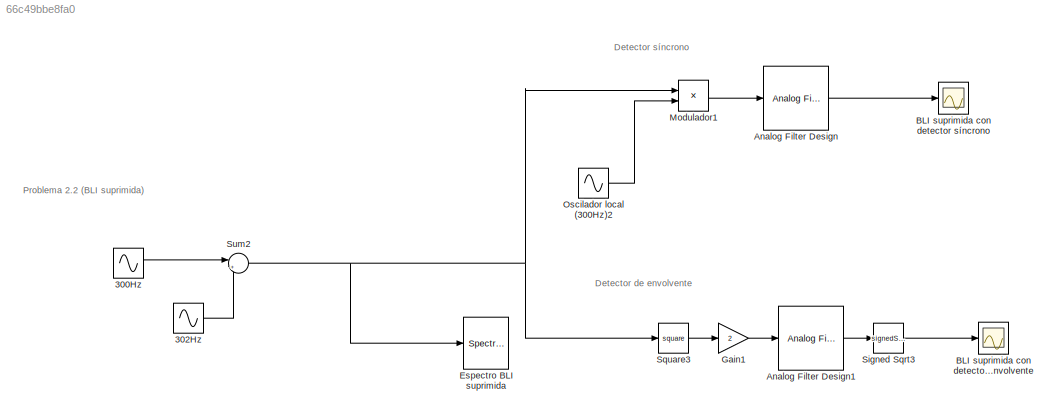
MODEL slx_66c49bbe8fa0
KIND model
CONFIG AbsTol = auto
CONFIG EnableMultiTasking = off
CONFIG FixedStep = auto
CONFIG MaxStep = auto
CONFIG MinStep = auto
CONFIG RelTol = 1e-3
CONFIG SampleTimeConstraint = Unconstrained
CONFIG SolverName = VariableStepAuto
CONFIG StartTime = 0.0
CONFIG StopTime = 10.0
BLOCK [Sin] 300Hz
  Frequency = 2*pi*300
  Ports = [0, 1]
  SampleTime = 1/5000
BLOCK [Sin] 302Hz
  Amplitude = 0.8
  Frequency = 2*pi*302
  Ports = [0, 1]
  SampleTime = 1/5000
BLOCK [Reference] Analog Filter Design  REF=dsparch4/Analog
Filter Design
  Ports = [1, 1]
  SourceBlock = dsparch4/Analog\nFilter Design
  SourceProductBaseCode = DS
  SourceType = Analog Filter Design
BLOCK [Reference] Analog Filter Design1  REF=dsparch4/Analog
Filter Design
  Ports = [1, 1]
  SourceBlock = dsparch4/Analog\nFilter Design
  SourceProductBaseCode = DS
  SourceType = Analog Filter Design
BLOCK [Scope] BLI suprimida con detector de envolvente
  Floating = off
  NumInputPorts = 1
  Ports = [1]
  ScopeSpecificationString = Simulink.scopes.TimeScopeBlockCfg('CurrentConfiguration', extmgr.ConfigurationSet(extmgr.Configuration('Core','General UI',true),extmgr.Configuration('Core','Source UI',true),extmgr.Configuration('Sources','WiredSimulink',true,'DataLoggingVariableName','ScopeData2'),extmgr.Configuration('Visuals','Time Domain',true,'SerializedDisplays',{struct('MinYLimReal','-0.22883','MaxYLimReal','2.05951','YLab...<+1401ch>
BLOCK [Scope] BLI suprimida con detector síncrono
  Floating = off
  NumInputPorts = 1
  Ports = [1]
  ScopeSpecificationString = Simulink.scopes.TimeScopeBlockCfg('CurrentConfiguration', extmgr.ConfigurationSet(extmgr.Configuration('Core','General UI',true),extmgr.Configuration('Core','Source UI',true),extmgr.Configuration('Sources','WiredSimulink',true,'DataLoggingVariableName','ScopeData1'),extmgr.Configuration('Visuals','Time Domain',true,'SerializedDisplays',{struct('MinYLimReal','-0.23424','MaxYLimReal','2.10812','YLab...<+1379ch>
BLOCK [SpectrumAnalyzer] Espectro BLI suprimida
  Ports = [1]
  ScopeSpecificationString = spbscopes.SpectrumAnalyzerBlockCfg('CurrentConfiguration', extmgr.ConfigurationSet(extmgr.Configuration('Core','General UI',true),extmgr.Configuration('Core','Source UI',true),extmgr.Configuration('Sources','WiredSimulink',true),extmgr.Configuration('Sources','SPTool',false),extmgr.Configuration('Sources','File',false),extmgr.Configuration('Sources','Workspace',false),extmgr.Configuration('Sources...<+3543ch>
BLOCK [Gain] Gain1
  Gain = 2
BLOCK [Product] Modulador1
  OutDataTypeStr = Inherit: Same as first input
  Ports = [2, 1]
BLOCK [Sin] Oscilador local (300Hz)2
  Amplitude = 2
  Frequency = 2*pi*300
  Ports = [0, 1]
  SampleTime = 1/5000
BLOCK [Sqrt] Signed Sqrt3
  Operator = signedSqrt
BLOCK [Math] Square3
  Operator = square
  Ports = [1, 1]
BLOCK [Sum] Sum2
  Inputs = |++
  Ports = [2, 1]
ANNOTATION (root): Detector de envolvente
ANNOTATION (root): Detector síncrono
ANNOTATION (root): Problema 2.2 (BLI suprimida)
LINE 300Hz:1 -> Sum2:1
LINE 302Hz:1 -> Sum2:2
LINE Analog Filter Design1:1 -> Signed Sqrt3:1
LINE Analog Filter Design:1 -> BLI suprimida con detector síncrono:1
LINE Gain1:1 -> Analog Filter Design1:1
LINE Modulador1:1 -> Analog Filter Design:1
LINE Oscilador local (300Hz)2:1 -> Modulador1:2
LINE Signed Sqrt3:1 -> BLI suprimida con detector de envolvente:1
LINE Square3:1 -> Gain1:1
NET Sum2:1 -> Espectro BLI suprimida:1, Modulador1:1, Square3:1
note: NET lines group one-source signal fan-out (src -> all destinations, sorted); 1:1 wires keep LINE
